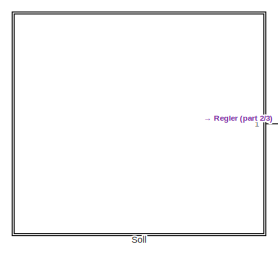
[diagram: root canvas - part 1/3, top left region]
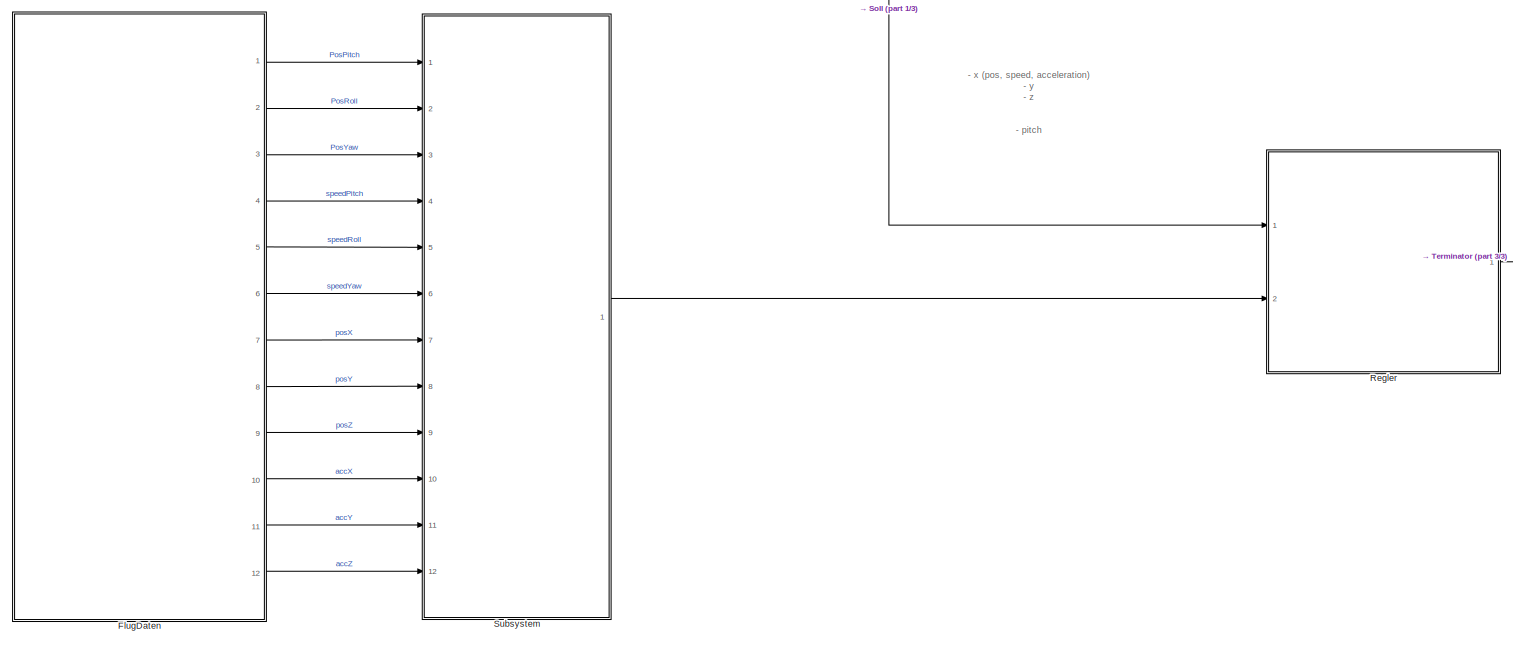
[diagram: root canvas - part 2/3, full width, bottom band]
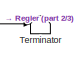
[diagram: root canvas - part 3/3, middle right region]
MODEL slx_555712c9543c
KIND model
CONFIG AbsTol = auto
CONFIG EnableMultiTasking = off
CONFIG FixedStep = auto
CONFIG MaxStep = auto
CONFIG MinStep = auto
CONFIG RelTol = 1e-3
CONFIG SampleTimeConstraint = Unconstrained
CONFIG SolverName = VariableStepAuto
CONFIG StartTime = 0.0
CONFIG StopTime = 53
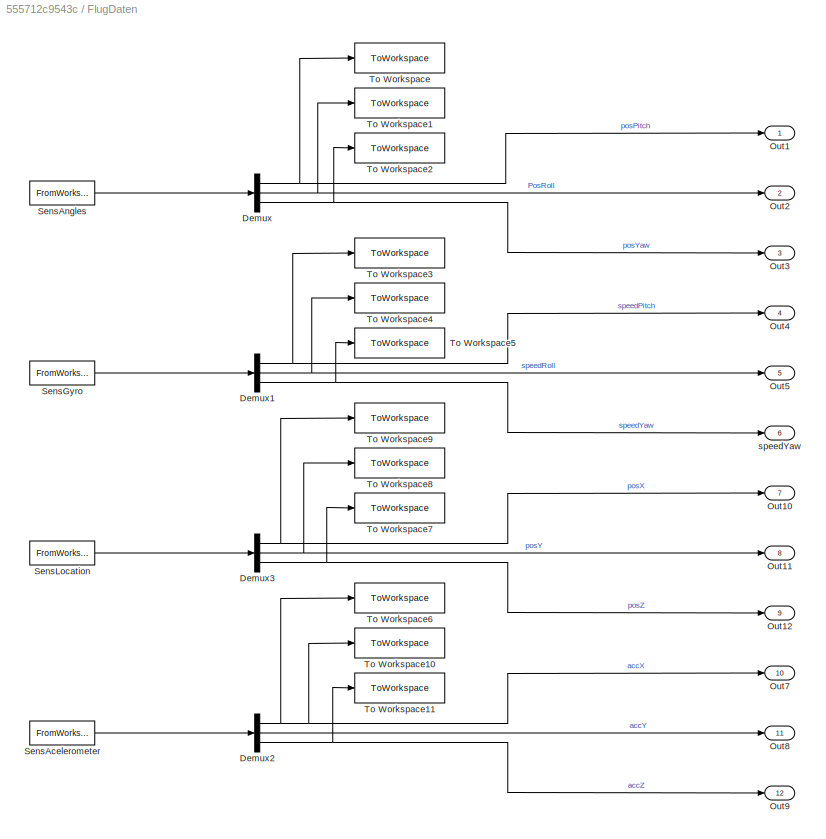
BLOCK [SubSystem] FlugDaten
  Ports = [0, 12]
  RequestExecContextInheritance = off
BLOCK [Demux] FlugDaten/Demux
  Outputs = 3
  Ports = [1, 3]
BLOCK [Demux] FlugDaten/Demux1
  Outputs = 3
  Ports = [1, 3]
BLOCK [Demux] FlugDaten/Demux2
  Outputs = 3
  Ports = [1, 3]
BLOCK [Demux] FlugDaten/Demux3
  Outputs = 3
  Ports = [1, 3]
BLOCK [Outport] FlugDaten/Out1
  IconDisplay = Signal name
BLOCK [Outport] FlugDaten/Out10
  IconDisplay = Signal name
  Port = 7
BLOCK [Outport] FlugDaten/Out11
  IconDisplay = Signal name
  Port = 8
BLOCK [Outport] FlugDaten/Out12
  IconDisplay = Signal name
  Port = 9
BLOCK [Outport] FlugDaten/Out2
  IconDisplay = Signal name
  Port = 2
BLOCK [Outport] FlugDaten/Out3
  IconDisplay = Signal name
  Port = 3
BLOCK [Outport] FlugDaten/Out4
  IconDisplay = Signal name
  Port = 4
BLOCK [Outport] FlugDaten/Out5
  IconDisplay = Signal name
  Port = 5
BLOCK [Outport] FlugDaten/Out7
  IconDisplay = Signal name
  Port = 10
BLOCK [Outport] FlugDaten/Out8
  IconDisplay = Signal name
  Port = 11
BLOCK [Outport] FlugDaten/Out9
  IconDisplay = Signal name
  Port = 12
BLOCK [FromWorkspace] FlugDaten/SensAcelerometer
  Interpolate = off
  OutputAfterFinalValue = Holding final value
  SampleTime = sampleTime
  VariableName = [M.Time M.xAcc M.yAcc M.zAcc]
BLOCK [FromWorkspace] FlugDaten/SensAngles
  Interpolate = off
  OutputAfterFinalValue = Holding final value
  SampleTime = sampleTime
  VariableName = [M.Time M.sensPitch M.sensRoll M.sensYaw]
BLOCK [FromWorkspace] FlugDaten/SensGyro
  Interpolate = off
  OutputAfterFinalValue = Holding final value
  SampleTime = sampleTime
  VariableName = [M.Time M.yGyro M.xGyro M.ZGyro]
BLOCK [FromWorkspace] FlugDaten/SensLocation
  Interpolate = off
  OutputAfterFinalValue = Holding final value
  SampleTime = sampleTime
  VariableName = [M.Time M.latitude M.longitude M.alt]
BLOCK [ToWorkspace] FlugDaten/To Workspace
  FixptAsFi = on
  MaxDataPoints = inf
  Ports = [1]
  SampleTime = -1
  SaveFormat = Timeseries
  VariableName = SD_PosPitch
BLOCK [ToWorkspace] FlugDaten/To Workspace1
  FixptAsFi = on
  MaxDataPoints = inf
  Ports = [1]
  SampleTime = -1
  SaveFormat = Timeseries
  VariableName = SD_PosRoll
BLOCK [ToWorkspace] FlugDaten/To Workspace10
  FixptAsFi = on
  MaxDataPoints = inf
  Ports = [1]
  SampleTime = -1
  SaveFormat = Timeseries
  VariableName = SD_accY
BLOCK [ToWorkspace] FlugDaten/To Workspace11
  FixptAsFi = on
  MaxDataPoints = inf
  Ports = [1]
  SampleTime = -1
  SaveFormat = Timeseries
  VariableName = SD_accZ
BLOCK [ToWorkspace] FlugDaten/To Workspace2
  FixptAsFi = on
  MaxDataPoints = inf
  Ports = [1]
  SampleTime = -1
  SaveFormat = Timeseries
  VariableName = SD_PosYaw
BLOCK [ToWorkspace] FlugDaten/To Workspace3
  FixptAsFi = on
  MaxDataPoints = inf
  Ports = [1]
  SampleTime = -1
  SaveFormat = Timeseries
  VariableName = SD_speedPitch
BLOCK [ToWorkspace] FlugDaten/To Workspace4
  FixptAsFi = on
  MaxDataPoints = inf
  Ports = [1]
  SampleTime = -1
  SaveFormat = Timeseries
  VariableName = SD_speedRoll
BLOCK [ToWorkspace] FlugDaten/To Workspace5
  FixptAsFi = on
  MaxDataPoints = inf
  Ports = [1]
  SampleTime = -1
  SaveFormat = Timeseries
  VariableName = SD_speedYaw
BLOCK [ToWorkspace] FlugDaten/To Workspace6
  FixptAsFi = on
  MaxDataPoints = inf
  Ports = [1]
  SampleTime = -1
  SaveFormat = Timeseries
  VariableName = SD_accX
BLOCK [ToWorkspace] FlugDaten/To Workspace7
  FixptAsFi = on
  MaxDataPoints = inf
  Ports = [1]
  SampleTime = -1
  SaveFormat = Timeseries
  VariableName = SD_posZ
BLOCK [ToWorkspace] FlugDaten/To Workspace8
  FixptAsFi = on
  MaxDataPoints = inf
  Ports = [1]
  SampleTime = -1
  SaveFormat = Timeseries
  VariableName = SD_posY
BLOCK [ToWorkspace] FlugDaten/To Workspace9
  FixptAsFi = on
  MaxDataPoints = inf
  Ports = [1]
  SampleTime = -1
  SaveFormat = Timeseries
  VariableName = SD_posX
BLOCK [Outport] FlugDaten/speedYaw
  Port = 6
BLOCK [SubSystem] Regler
  NameLocation = top
  Ports = [2, 1]
  ReferencedSubsystem = Regler
  RequestExecContextInheritance = off
  VariantControl = Choice
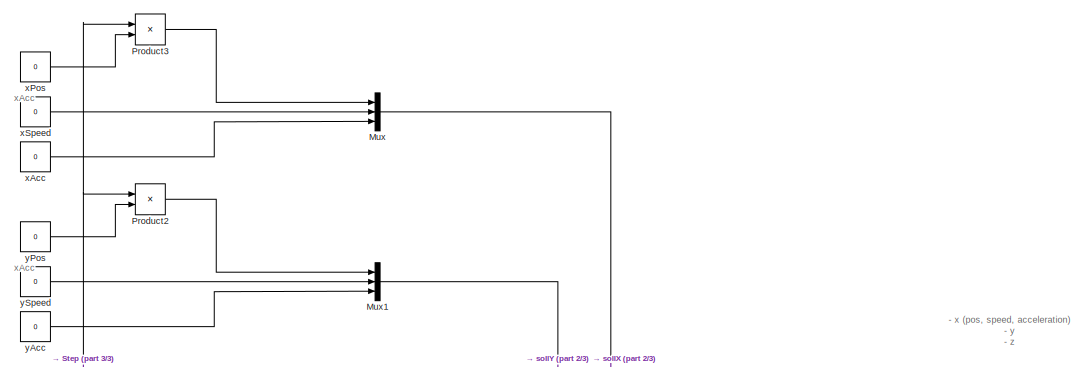
[diagram: Soll - part 1/3, top center region]
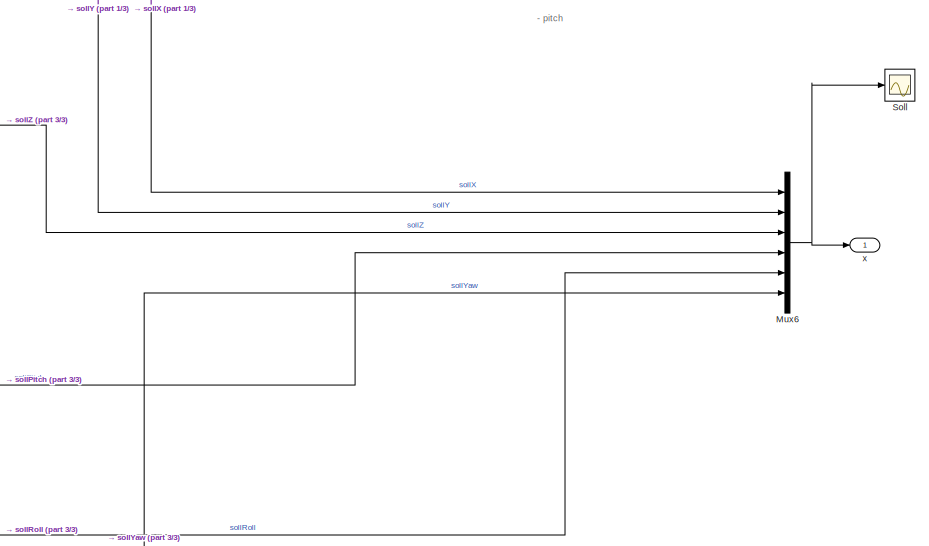
[diagram: Soll - part 2/3, middle right region]
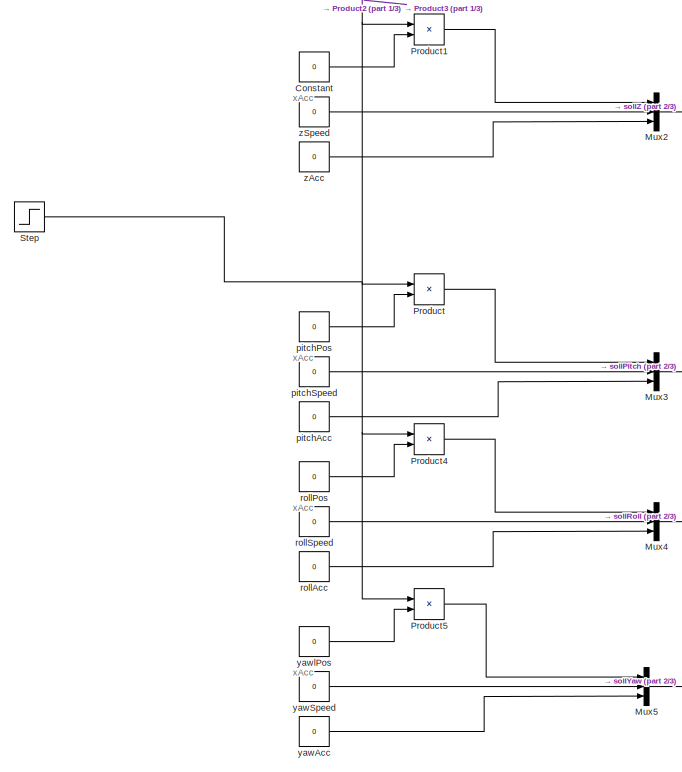
[diagram: Soll - part 3/3, middle left region]
BLOCK [SubSystem] Soll
  Ports = [0, 1]
  RequestExecContextInheritance = off
BLOCK [Constant] Soll/Constant
  Value = 0
BLOCK [Mux] Soll/Mux
  DisplayOption = bar
  Inputs = 3
  Ports = [3, 1]
BLOCK [Mux] Soll/Mux1
  DisplayOption = bar
  Inputs = 3
  Ports = [3, 1]
BLOCK [Mux] Soll/Mux2
  DisplayOption = bar
  Inputs = 3
  Ports = [3, 1]
BLOCK [Mux] Soll/Mux3
  DisplayOption = bar
  Inputs = 3
  Ports = [3, 1]
BLOCK [Mux] Soll/Mux4
  DisplayOption = bar
  Inputs = 3
  Ports = [3, 1]
BLOCK [Mux] Soll/Mux5
  DisplayOption = bar
  Inputs = 3
  Ports = [3, 1]
BLOCK [Mux] Soll/Mux6
  DisplayOption = bar
  Inputs = 6
  Ports = [6, 1]
BLOCK [Product] Soll/Product
  Ports = [2, 1]
BLOCK [Product] Soll/Product1
  Ports = [2, 1]
BLOCK [Product] Soll/Product2
  Ports = [2, 1]
BLOCK [Product] Soll/Product3
  Ports = [2, 1]
BLOCK [Product] Soll/Product4
  Ports = [2, 1]
BLOCK [Product] Soll/Product5
  Ports = [2, 1]
BLOCK [Scope] Soll/Soll
  Floating = off
  NumInputPorts = 1
  Ports = [1]
  ScopeSpecificationString = Simulink.scopes.TimeScopeBlockCfg('CurrentConfiguration', extmgr.ConfigurationSet(extmgr.Configuration('Core','General UI',true),extmgr.Configuration('Core','Source UI',true),extmgr.Configuration('Sources','WiredSimulink',true,'DataLoggingVariableName','ScopeData3'),extmgr.Configuration('Visuals','Time Domain',true,'SerializedDisplays',{struct('MinYLimReal','-0.125','MaxYLimReal','1.125','YLabelRe...<+2030ch>
BLOCK [Step] Soll/Step
  SampleTime = 0
BLOCK [Constant] Soll/pitchAcc
  Value = 0
BLOCK [Constant] Soll/pitchPos
  Value = 0
BLOCK [Constant] Soll/pitchSpeed
  Value = 0
BLOCK [Constant] Soll/rollAcc
  Value = 0
BLOCK [Constant] Soll/rollPos
  Value = 0
BLOCK [Constant] Soll/rollSpeed
  Value = 0
BLOCK [Outport] Soll/x
BLOCK [Constant] Soll/xAcc
  Value = 0
BLOCK [Constant] Soll/xPos
  Value = 0
BLOCK [Constant] Soll/xSpeed
  Value = 0
BLOCK [Constant] Soll/yAcc
  Value = 0
BLOCK [Constant] Soll/yPos
  Value = 0
BLOCK [Constant] Soll/ySpeed
  Value = 0
BLOCK [Constant] Soll/yawAcc
  Value = 0
BLOCK [Constant] Soll/yawSpeed
  Value = 0
BLOCK [Constant] Soll/yawlPos
  Value = 0
BLOCK [Constant] Soll/zAcc
  Value = 0
BLOCK [Constant] Soll/zSpeed
  Value = 0
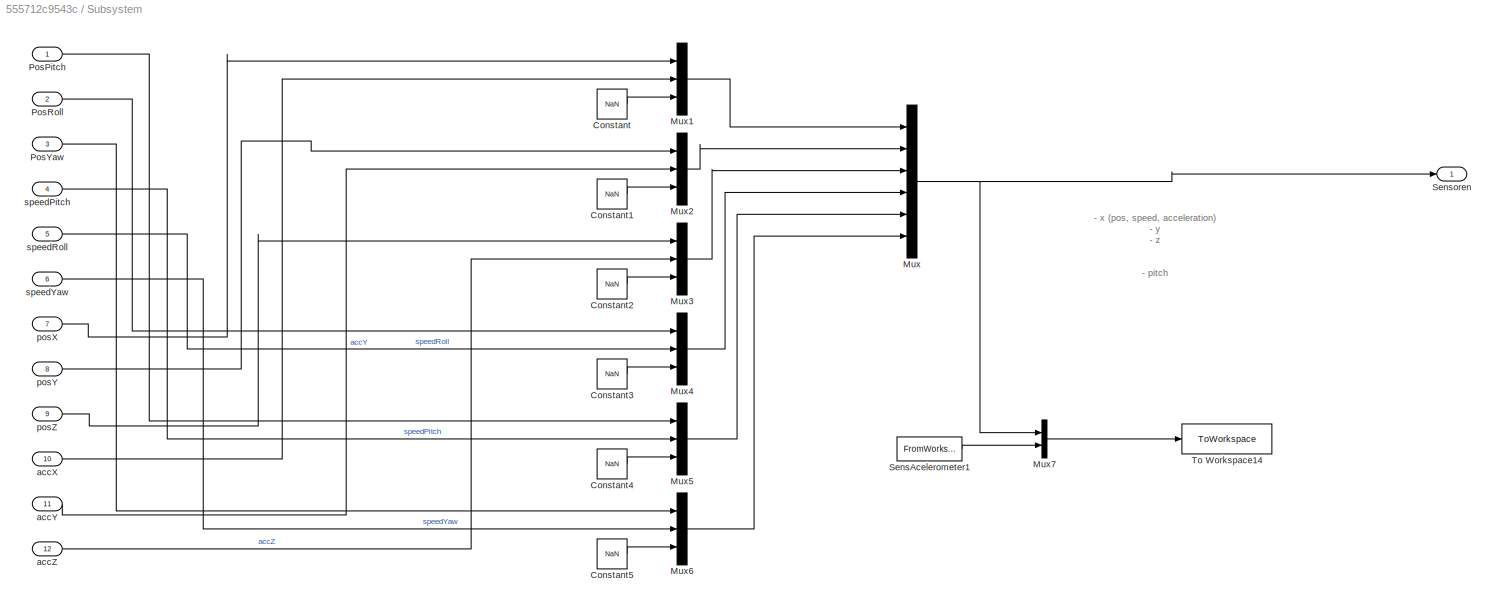
BLOCK [SubSystem] Subsystem
  Ports = [12, 1]
  RequestExecContextInheritance = off
BLOCK [Constant] Subsystem/Constant
  Value = NaN
BLOCK [Constant] Subsystem/Constant1
  Value = NaN
BLOCK [Constant] Subsystem/Constant2
  Value = NaN
BLOCK [Constant] Subsystem/Constant3
  Value = NaN
BLOCK [Constant] Subsystem/Constant4
  Value = NaN
BLOCK [Constant] Subsystem/Constant5
  Value = NaN
BLOCK [Mux] Subsystem/Mux
  DisplayOption = bar
  Inputs = 6
  Ports = [6, 1]
BLOCK [Mux] Subsystem/Mux1
  DisplayOption = bar
  Inputs = 3
  Ports = [3, 1]
BLOCK [Mux] Subsystem/Mux2
  DisplayOption = bar
  Inputs = 3
  Ports = [3, 1]
BLOCK [Mux] Subsystem/Mux3
  DisplayOption = bar
  Inputs = 3
  Ports = [3, 1]
BLOCK [Mux] Subsystem/Mux4
  DisplayOption = bar
  Inputs = 3
  Ports = [3, 1]
BLOCK [Mux] Subsystem/Mux5
  DisplayOption = bar
  Inputs = 3
  Ports = [3, 1]
BLOCK [Mux] Subsystem/Mux6
  DisplayOption = bar
  Inputs = 3
  Ports = [3, 1]
BLOCK [Mux] Subsystem/Mux7
  DisplayOption = bar
  Inputs = 2
  Ports = [2, 1]
BLOCK [Inport] Subsystem/PosPitch
BLOCK [Inport] Subsystem/PosRoll
  Port = 2
BLOCK [Inport] Subsystem/PosYaw
  Port = 3
BLOCK [FromWorkspace] Subsystem/SensAcelerometer1
  Interpolate = off
  OutputAfterFinalValue = Holding final value
  SampleTime = sampleTime
  VariableName = [M.Time M.cP M.cR]
BLOCK [Outport] Subsystem/Sensoren
BLOCK [ToWorkspace] Subsystem/To Workspace14
  FixptAsFi = on
  MaxDataPoints = inf
  Ports = [1]
  SampleTime = -1
  SaveFormat = Timeseries
  VariableName = FlightData
BLOCK [Inport] Subsystem/accX
  Port = 10
BLOCK [Inport] Subsystem/accY
  Port = 11
BLOCK [Inport] Subsystem/accZ
  IconDisplay = Signal name
  Port = 12
BLOCK [Inport] Subsystem/posX
  Port = 7
BLOCK [Inport] Subsystem/posY
  Port = 8
BLOCK [Inport] Subsystem/posZ
  Port = 9
BLOCK [Inport] Subsystem/speedPitch
  IconDisplay = Signal name
  Port = 4
BLOCK [Inport] Subsystem/speedRoll
  IconDisplay = Signal name
  Port = 5
BLOCK [Inport] Subsystem/speedYaw
  IconDisplay = Signal name
  Port = 6
BLOCK [Terminator] Terminator
ANNOTATION (root): - x (pos, speed, acceleration) - y - z - pitch - roll - yaw
ANNOTATION Soll: - x (pos, speed, acceleration) - y - z - pitch - roll - yaw
ANNOTATION Soll: xAcc
ANNOTATION Subsystem: - x (pos, speed, acceleration) - y - z - pitch - roll - yaw
NET FlugDaten/Demux1:1 -> FlugDaten/Out4:1, FlugDaten/To Workspace3:1
NET FlugDaten/Demux1:2 -> FlugDaten/Out5:1, FlugDaten/To Workspace4:1
NET FlugDaten/Demux1:3 -> FlugDaten/To Workspace5:1, FlugDaten/speedYaw:1
NET FlugDaten/Demux2:1 -> FlugDaten/Out7:1, FlugDaten/To Workspace10:1, FlugDaten/To Workspace6:1
LINE FlugDaten/Demux2:2 -> FlugDaten/Out8:1
NET FlugDaten/Demux2:3 -> FlugDaten/Out9:1, FlugDaten/To Workspace11:1
NET FlugDaten/Demux3:1 -> FlugDaten/Out10:1, FlugDaten/To Workspace9:1
NET FlugDaten/Demux3:2 -> FlugDaten/Out11:1, FlugDaten/To Workspace8:1
NET FlugDaten/Demux3:3 -> FlugDaten/Out12:1, FlugDaten/To Workspace7:1
NET FlugDaten/Demux:1 -> FlugDaten/Out1:1, FlugDaten/To Workspace:1
NET FlugDaten/Demux:2 -> FlugDaten/Out2:1, FlugDaten/To Workspace1:1
NET FlugDaten/Demux:3 -> FlugDaten/Out3:1, FlugDaten/To Workspace2:1
LINE FlugDaten/SensAcelerometer:1 -> FlugDaten/Demux2:1
LINE FlugDaten/SensAngles:1 -> FlugDaten/Demux:1
LINE FlugDaten/SensGyro:1 -> FlugDaten/Demux1:1
LINE FlugDaten/SensLocation:1 -> FlugDaten/Demux3:1
LINE FlugDaten:1 -> Subsystem:1
LINE FlugDaten:10 -> Subsystem:10
LINE FlugDaten:11 -> Subsystem:11
LINE FlugDaten:12 -> Subsystem:12
LINE FlugDaten:2 -> Subsystem:2
LINE FlugDaten:3 -> Subsystem:3
LINE FlugDaten:4 -> Subsystem:4
LINE FlugDaten:5 -> Subsystem:5
LINE FlugDaten:6 -> Subsystem:6
LINE FlugDaten:7 -> Subsystem:7
LINE FlugDaten:8 -> Subsystem:8
LINE FlugDaten:9 -> Subsystem:9
LINE Regler:1 -> Terminator:1
LINE Soll/Constant:1 -> Soll/Product1:2
LINE Soll/Mux1:1 -> Soll/Mux6:2
LINE Soll/Mux2:1 -> Soll/Mux6:3
LINE Soll/Mux3:1 -> Soll/Mux6:4
LINE Soll/Mux4:1 -> Soll/Mux6:5
LINE Soll/Mux5:1 -> Soll/Mux6:6
NET Soll/Mux6:1 -> Soll/Soll:1, Soll/x:1
LINE Soll/Mux:1 -> Soll/Mux6:1
LINE Soll/Product1:1 -> Soll/Mux2:1
LINE Soll/Product2:1 -> Soll/Mux1:1
LINE Soll/Product3:1 -> Soll/Mux:1
LINE Soll/Product4:1 -> Soll/Mux4:1
LINE Soll/Product5:1 -> Soll/Mux5:1
LINE Soll/Product:1 -> Soll/Mux3:1
NET Soll/Step:1 -> Soll/Product1:1, Soll/Product2:1, Soll/Product3:1, Soll/Product4:1, Soll/Product5:1, Soll/Product:1
LINE Soll/pitchAcc:1 -> Soll/Mux3:3
LINE Soll/pitchPos:1 -> Soll/Product:2
LINE Soll/pitchSpeed:1 -> Soll/Mux3:2
LINE Soll/rollAcc:1 -> Soll/Mux4:3
LINE Soll/rollPos:1 -> Soll/Product4:2
LINE Soll/rollSpeed:1 -> Soll/Mux4:2
LINE Soll/xAcc:1 -> Soll/Mux:3
LINE Soll/xPos:1 -> Soll/Product3:2
LINE Soll/xSpeed:1 -> Soll/Mux:2
LINE Soll/yAcc:1 -> Soll/Mux1:3
LINE Soll/yPos:1 -> Soll/Product2:2
LINE Soll/ySpeed:1 -> Soll/Mux1:2
LINE Soll/yawAcc:1 -> Soll/Mux5:3
LINE Soll/yawSpeed:1 -> Soll/Mux5:2
LINE Soll/yawlPos:1 -> Soll/Product5:2
LINE Soll/zAcc:1 -> Soll/Mux2:3
LINE Soll/zSpeed:1 -> Soll/Mux2:2
LINE Soll:1 -> Regler:1
LINE Subsystem/Constant1:1 -> Subsystem/Mux2:3
LINE Subsystem/Constant2:1 -> Subsystem/Mux3:3
LINE Subsystem/Constant3:1 -> Subsystem/Mux4:3
LINE Subsystem/Constant4:1 -> Subsystem/Mux5:3
LINE Subsystem/Constant5:1 -> Subsystem/Mux6:3
LINE Subsystem/Constant:1 -> Subsystem/Mux1:3
LINE Subsystem/Mux1:1 -> Subsystem/Mux:1
LINE Subsystem/Mux2:1 -> Subsystem/Mux:2
LINE Subsystem/Mux3:1 -> Subsystem/Mux:3
LINE Subsystem/Mux4:1 -> Subsystem/Mux:4
LINE Subsystem/Mux5:1 -> Subsystem/Mux:5
LINE Subsystem/Mux6:1 -> Subsystem/Mux:6
LINE Subsystem/Mux7:1 -> Subsystem/To Workspace14:1
NET Subsystem/Mux:1 -> Subsystem/Mux7:1, Subsystem/Sensoren:1
LINE Subsystem/PosPitch:1 -> Subsystem/Mux5:1
LINE Subsystem/PosRoll:1 -> Subsystem/Mux4:1
LINE Subsystem/PosYaw:1 -> Subsystem/Mux6:1
LINE Subsystem/SensAcelerometer1:1 -> Subsystem/Mux7:2
LINE Subsystem/accX:1 -> Subsystem/Mux1:2
LINE Subsystem/accY:1 -> Subsystem/Mux2:2
LINE Subsystem/accZ:1 -> Subsystem/Mux3:2
LINE Subsystem/posX:1 -> Subsystem/Mux1:1
LINE Subsystem/posY:1 -> Subsystem/Mux2:1
LINE Subsystem/posZ:1 -> Subsystem/Mux3:1
LINE Subsystem/speedPitch:1 -> Subsystem/Mux5:2
LINE Subsystem/speedRoll:1 -> Subsystem/Mux4:2
LINE Subsystem/speedYaw:1 -> Subsystem/Mux6:2
LINE Subsystem:1 -> Regler:2
note: NET lines group one-source signal fan-out (src -> all destinations, sorted); 1:1 wires keep LINE
